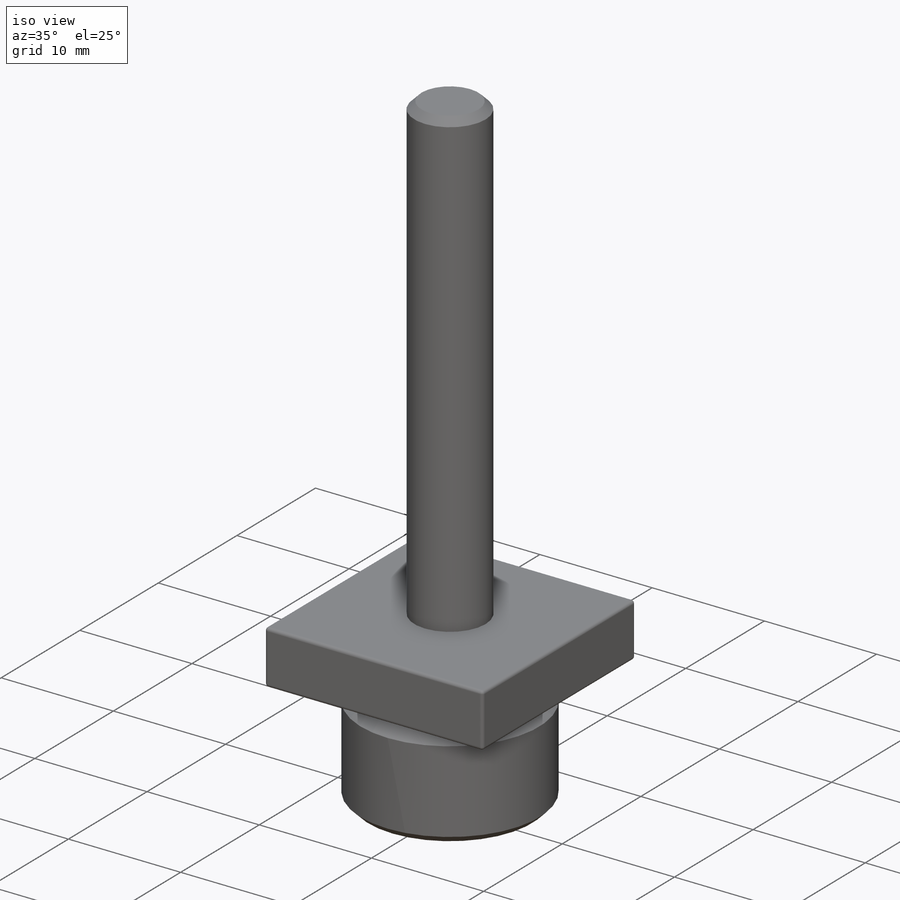
[diagram: iso view]
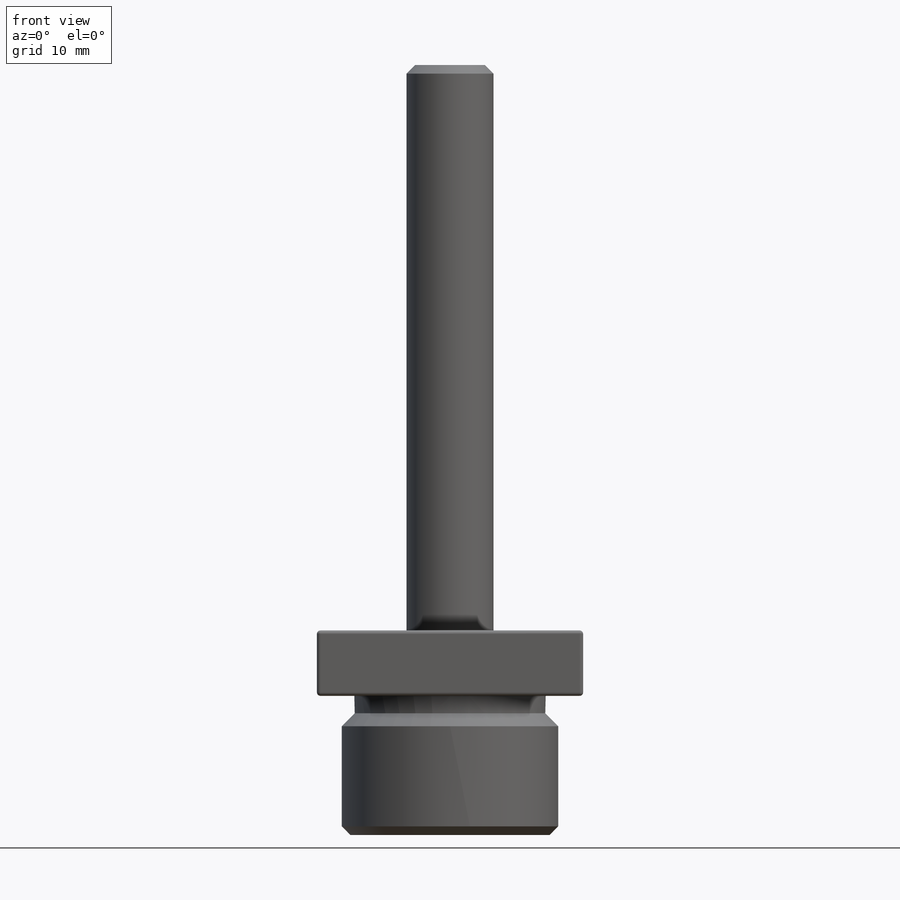
[diagram: front view]
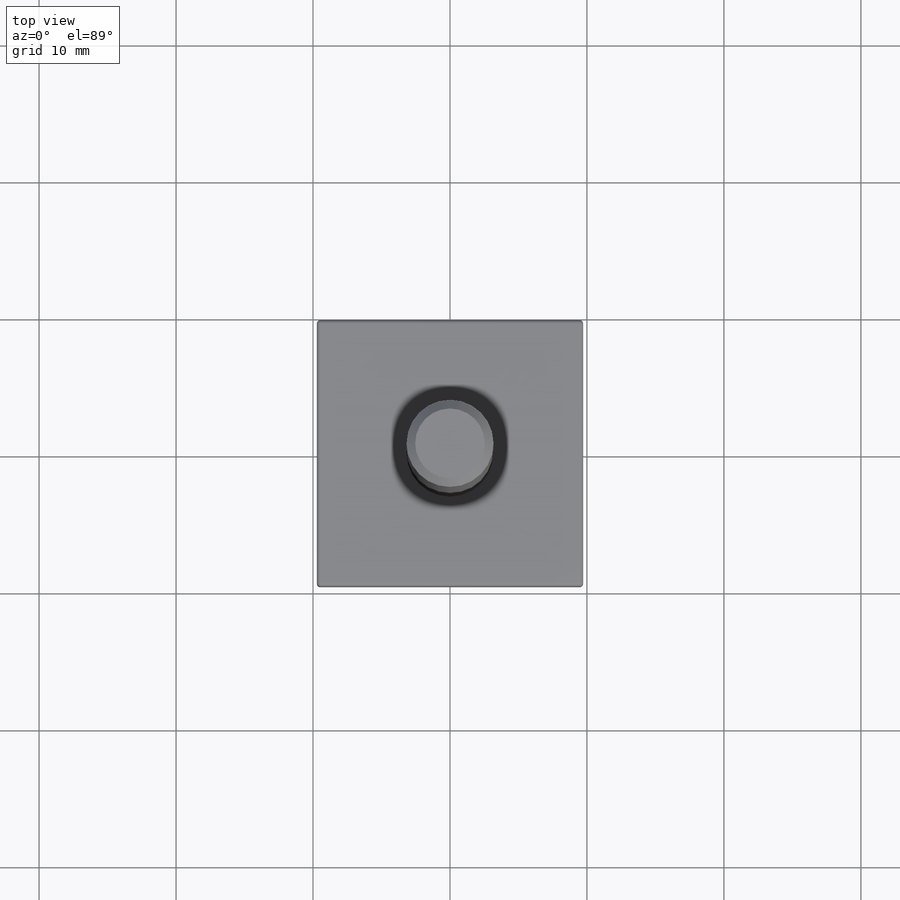
[diagram: top view]
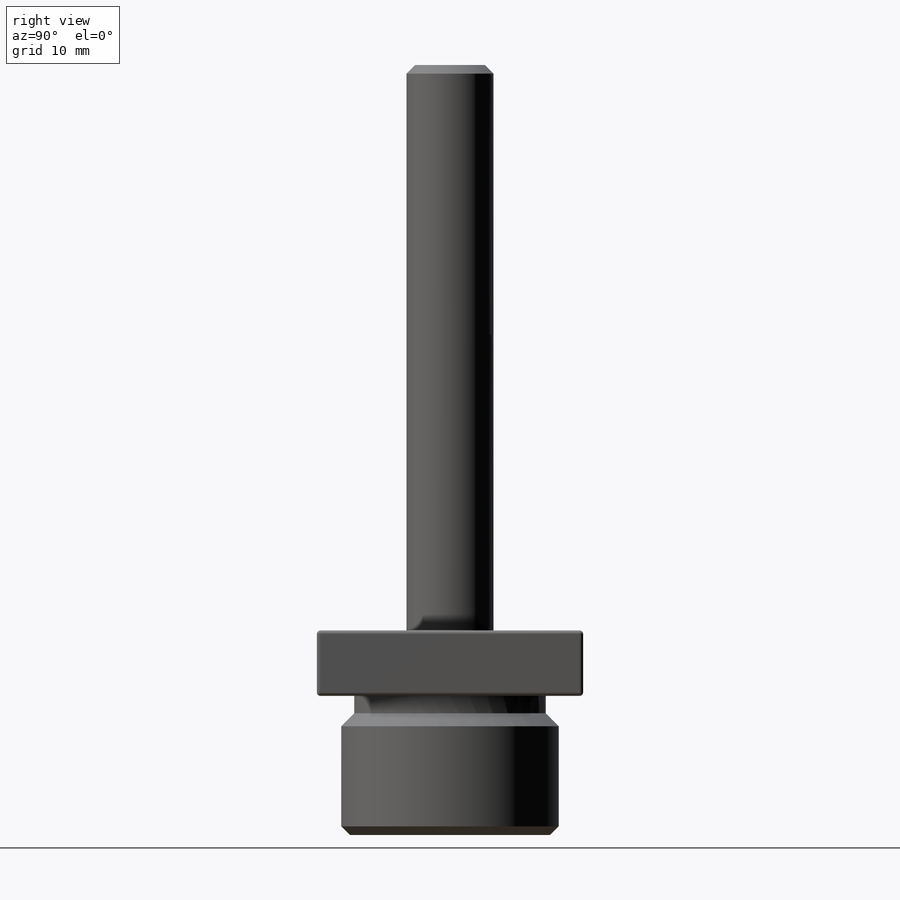
[diagram: right view]
SOLIDWORKS PART (.sldprt)
format: sldprt  version: not decoded by parser v0  size: 465,920 bytes
history: native  units: mm
features: sketch x6, plane x4, extrude x4, chamfer x2, material x1, cut_revolve x1, cut_extrude x1, fillet x1 + 2 further entries (+9 scaffold rows collapsed)
feature tree (31):
  scaffold x9  (default folders/planes/origin — collapsed)
  material  "Material <not specified>"
  plane  "Plane X-Y"
  plane  "Plane X-Z"
  plane  "Plane Y-Z"
  "Axis - Y"
  "Axis - Z"
  sketch  "Sketch1"  dims[D1=19.431mm]
  extrude  "Extrude1"  Depth=4.7752mm
  sketch  "Sketch2"  dims[D1=6.35mm]
  extrude  "Extrude2"  Depth=41.275mm
  sketch  "Sketch3"  dims[D1=15.875mm]
  extrude  "Extrude3"  Depth=10.16mm
  plane  "Plane1"  Offset=21.59mm
  chamfer  "Chamfer1"  Distance=0.635mm Angle=45deg
  sketch  "Sketch4"  dims[c1.D1=~1.177088mm c2.D1=45.0deg c2.D2=13.97mm c2.D3=1.27mm]
  cut_revolve  "Cut-Revolve1"  Angle=360deg
  chamfer  "Chamfer2"  Distance=0.635mm Angle=45deg
  sketch  "Sketch5"  dims[D1=4.826mm]
  cut_extrude  "Cut-Extrude1"  Depth=4.318mm
  fillet  "Fillet1"  Radius=0.254mm
  sketch  "Sketch6"  dims[D1=2.286mm]
  extrude  "Split Line4"  [1 undecoded]
decode coverage: 14 of 15 modeling features carry decoded parameters; 2 rows unclassified (native names shown)
note: ~ marks probable driven/reference dimensions
note: 1 parameter value undecoded
note: suppression state not decoded; provenance and decode notes live in map.json
